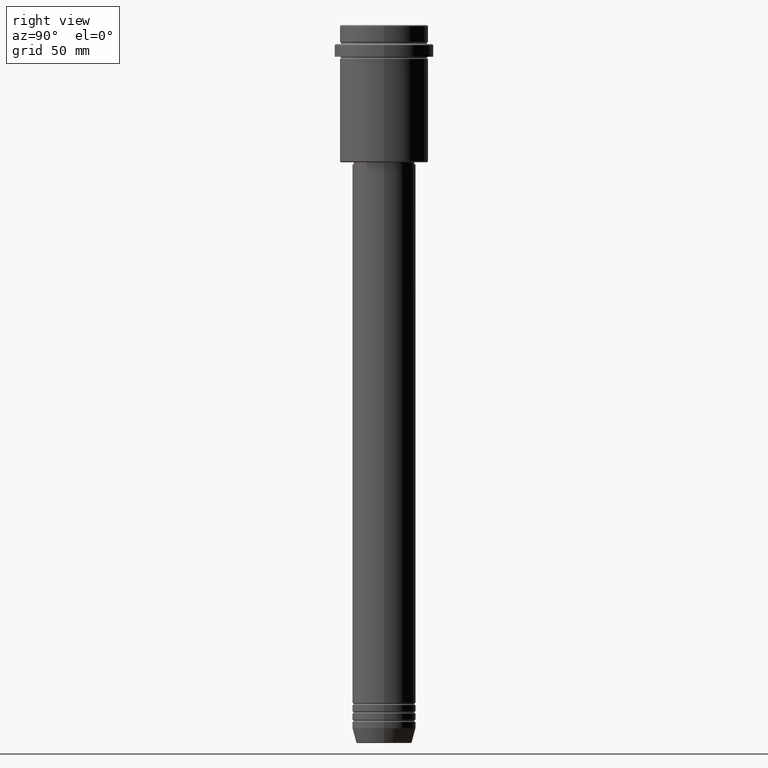
[diagram: clean part render]
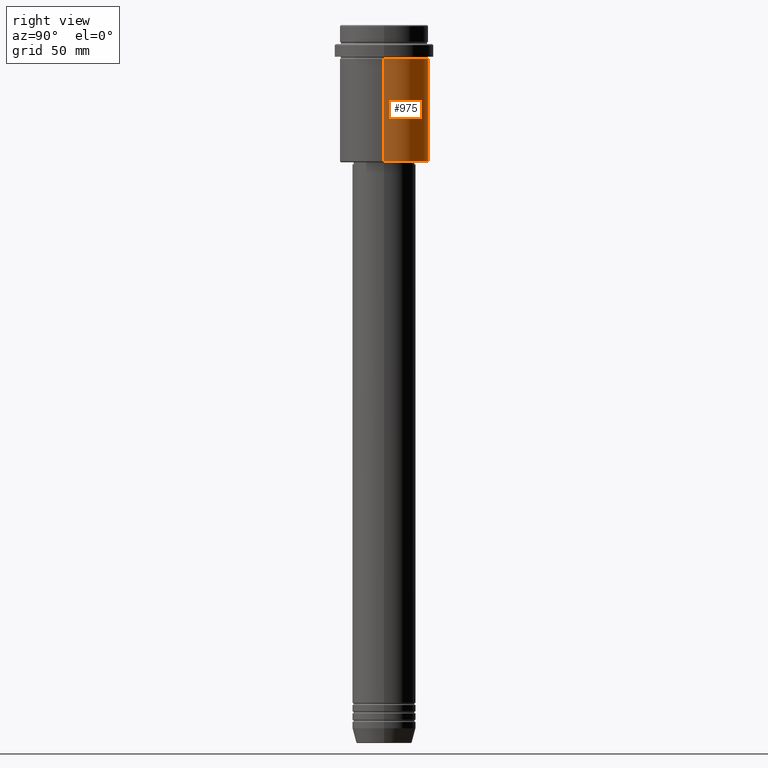
[diagram: same view with one face highlighted and labeled with its STEP entity id]
A machine part, right view. The second image highlights one B-rep face of the part: STEP entity #975.
In plain terms, the highlighted cylindrical surface (partial cylindrical patch) has radius 21 mm, axis along (-0, -0, 1).
Its self-contained STEP definition (entity closure, byte-faithful):
#44 = AXIS2_PLACEMENT_3D ( 'NONE', #1242, #883, #1336 ) ;
#49 = CARTESIAN_POINT ( 'NONE',  ( -20.99999999999999645, 2.571758278209441267E-15, -64.49999999999992895 ) ) ;
#50 = ORIENTED_EDGE ( 'NONE', *, *, #109, .T. ) ;
#70 = ORIENTED_EDGE ( 'NONE', *, *, #129, .T. ) ;
#109 = EDGE_CURVE ( 'NONE', #1015, #173, #1114, .T. ) ;
#129 = EDGE_CURVE ( 'NONE', #411, #1015, #544, .T. ) ;
#173 = VERTEX_POINT ( 'NONE', #579 ) ;
#326 = DIRECTION ( 'NONE',  ( -0.000000000000000000, -0.000000000000000000, 1.000000000000000000 ) ) ;
#366 = CARTESIAN_POINT ( 'NONE',  ( -20.99999999999999645, 2.571758278209441267E-15, 0.000000000000000000 ) ) ;
#368 = CARTESIAN_POINT ( 'NONE',  ( 20.99999999999999645, 0.000000000000000000, 0.000000000000000000 ) ) ;
#411 = VERTEX_POINT ( 'NONE', #1288 ) ;
#426 = ORIENTED_EDGE ( 'NONE', *, *, #992, .F. ) ;
#462 = DIRECTION ( 'NONE',  ( -0.000000000000000000, -0.000000000000000000, 1.000000000000000000 ) ) ;
#493 = VECTOR ( 'NONE', #462, 1000.000000000000000 ) ;
#503 = AXIS2_PLACEMENT_3D ( 'NONE', #1076, #326, #766 ) ;
#544 = CIRCLE ( 'NONE', #44, 20.99999999999999645 ) ;
#567 = CARTESIAN_POINT ( 'NONE',  ( 20.99999999999999645, 0.000000000000000000, -16.00000000000000355 ) ) ;
#576 = CYLINDRICAL_SURFACE ( 'NONE', #775, 20.99999999999999645 ) ;
#579 = CARTESIAN_POINT ( 'NONE',  ( -20.99999999999999645, 2.571758278209441267E-15, -16.00000000000000355 ) ) ;
#605 = DIRECTION ( 'NONE',  ( 1.000000000000000000, 0.000000000000000000, 0.000000000000000000 ) ) ;
#766 = DIRECTION ( 'NONE',  ( 1.000000000000000000, 0.000000000000000000, 0.000000000000000000 ) ) ;
#775 = AXIS2_PLACEMENT_3D ( 'NONE', #1014, #905, #605 ) ;
#798 = FACE_OUTER_BOUND ( 'NONE', #1344, .T. ) ;
#838 = EDGE_CURVE ( 'NONE', #1331, #173, #985, .T. ) ;
#883 = DIRECTION ( 'NONE',  ( -0.000000000000000000, -0.000000000000000000, 1.000000000000000000 ) ) ;
#905 = DIRECTION ( 'NONE',  ( -0.000000000000000000, -0.000000000000000000, 1.000000000000000000 ) ) ;
#975 = ADVANCED_FACE ( 'NONE', ( #798 ), #576, .T. ) ;
#985 = CIRCLE ( 'NONE', #503, 20.99999999999999645 ) ;
#992 = EDGE_CURVE ( 'NONE', #411, #1331, #1030, .T. ) ;
#1014 = CARTESIAN_POINT ( 'NONE',  ( 0.000000000000000000, 0.000000000000000000, 0.000000000000000000 ) ) ;
#1015 = VERTEX_POINT ( 'NONE', #49 ) ;
#1029 = VECTOR ( 'NONE', #1259, 1000.000000000000000 ) ;
#1030 = LINE ( 'NONE', #368, #1029 ) ;
#1076 = CARTESIAN_POINT ( 'NONE',  ( 0.000000000000000000, 0.000000000000000000, -16.00000000000000355 ) ) ;
#1114 = LINE ( 'NONE', #366, #493 ) ;
#1242 = CARTESIAN_POINT ( 'NONE',  ( 0.000000000000000000, 0.000000000000000000, -64.49999999999992895 ) ) ;
#1259 = DIRECTION ( 'NONE',  ( -0.000000000000000000, -0.000000000000000000, 1.000000000000000000 ) ) ;
#1288 = CARTESIAN_POINT ( 'NONE',  ( 20.99999999999999645, 0.000000000000000000, -64.49999999999992895 ) ) ;
#1331 = VERTEX_POINT ( 'NONE', #567 ) ;
#1336 = DIRECTION ( 'NONE',  ( -1.000000000000000000, 0.000000000000000000, 0.000000000000000000 ) ) ;
#1344 = EDGE_LOOP ( 'NONE', ( #70, #50, #1393, #426 ) ) ;
#1393 = ORIENTED_EDGE ( 'NONE', *, *, #838, .F. ) ;